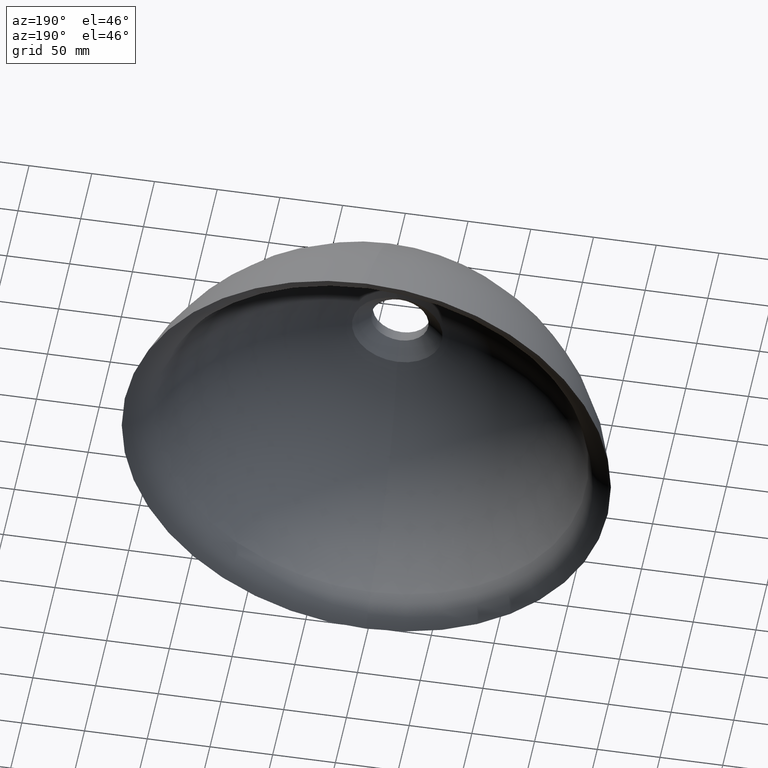
[diagram: clean part render]
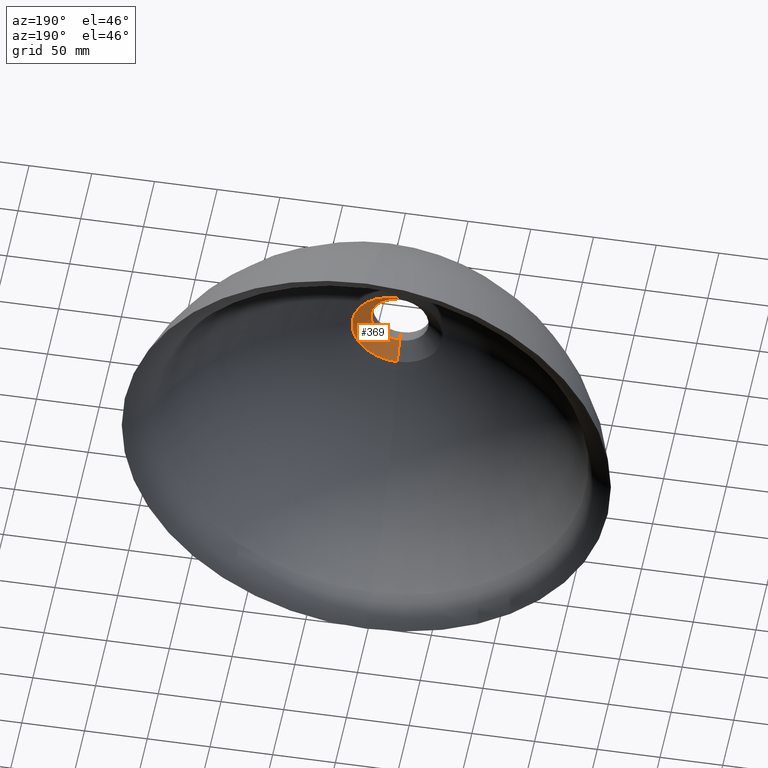
[diagram: same view with one face highlighted and labeled with its STEP entity id]
A machine part, auxiliary view. The second image highlights one B-rep face of the part: STEP entity #369.
In plain terms, the highlighted conical surface has half-angle 50 deg.
Its self-contained STEP definition (entity closure, byte-faithful):
#3 = CARTESIAN_POINT ( 'NONE',  ( 0.0000000000000000000, 20.00000000000000000, 0.0000000000000000000 ) ) ;
#5 = DIRECTION ( 'NONE',  ( 0.0000000000000000000, 0.0000000000000000000, 1.000000000000000000 ) ) ;
#9 = DIRECTION ( 'NONE',  ( -0.0000000000000000000, -1.000000000000000000, -0.0000000000000000000 ) ) ;
#14 = CARTESIAN_POINT ( 'NONE',  ( 1.284747968416844600E-014, 20.00000000000000000, 36.10928951853636400 ) ) ;
#16 = VERTEX_POINT ( 'NONE', #233 ) ;
#31 = EDGE_LOOP ( 'NONE', ( #453, #185, #42, #218 ) ) ;
#39 = CIRCLE ( 'NONE', #336, 23.00000000000000000 ) ;
#42 = ORIENTED_EDGE ( 'NONE', *, *, #209, .T. ) ;
#67 = CARTESIAN_POINT ( 'NONE',  ( 2.816687638038912400E-015, 9.000000000000001800, -23.00000000000000000 ) ) ;
#98 = VECTOR ( 'NONE', #298, 1000.000000000000000 ) ;
#138 = LINE ( 'NONE', #159, #199 ) ;
#159 = CARTESIAN_POINT ( 'NONE',  ( 0.0000000000000000000, 9.000000000000001800, 23.00000000000000000 ) ) ;
#174 = LINE ( 'NONE', #67, #98 ) ;
#177 = VERTEX_POINT ( 'NONE', #14 ) ;
#184 = CARTESIAN_POINT ( 'NONE',  ( 0.0000000000000000000, 9.000000000000001800, 0.0000000000000000000 ) ) ;
#185 = ORIENTED_EDGE ( 'NONE', *, *, #403, .T. ) ;
#194 = DIRECTION ( 'NONE',  ( 0.0000000000000000000, 1.000000000000000000, 0.0000000000000000000 ) ) ;
#199 = VECTOR ( 'NONE', #331, 1000.000000000000000 ) ;
#209 = EDGE_CURVE ( 'NONE', #394, #177, #138, .T. ) ;
#211 = CARTESIAN_POINT ( 'NONE',  ( 0.0000000000000000000, 9.000000000000001800, 0.0000000000000000000 ) ) ;
#218 = ORIENTED_EDGE ( 'NONE', *, *, #354, .F. ) ;
#223 = VERTEX_POINT ( 'NONE', #337 ) ;
#233 = CARTESIAN_POINT ( 'NONE',  ( 0.0000000000000000000, 20.00000000000000000, -36.10928951853636400 ) ) ;
#251 = AXIS2_PLACEMENT_3D ( 'NONE', #3, #9, #451 ) ;
#277 = CIRCLE ( 'NONE', #251, 36.10928951853636400 ) ;
#284 = CARTESIAN_POINT ( 'NONE',  ( 0.0000000000000000000, 9.000000000000001800, 23.00000000000000000 ) ) ;
#298 = DIRECTION ( 'NONE',  ( 9.381338752702746800E-017, 0.6427876096865378100, -0.7660444431189793500 ) ) ;
#322 = CONICAL_SURFACE ( 'NONE', #416, 23.00000000000000000, 0.8726646259971667700 ) ;
#331 = DIRECTION ( 'NONE',  ( 0.0000000000000000000, 0.6427876096865378100, 0.7660444431189793500 ) ) ;
#336 = AXIS2_PLACEMENT_3D ( 'NONE', #211, #421, #454 ) ;
#337 = CARTESIAN_POINT ( 'NONE',  ( 3.619400110437487600E-015, 9.000000000000001800, -23.00000000000000000 ) ) ;
#338 = FACE_OUTER_BOUND ( 'NONE', #31, .T. ) ;
#354 = EDGE_CURVE ( 'NONE', #16, #177, #277, .T. ) ;
#369 = ADVANCED_FACE ( 'NONE', ( #338 ), #322, .F. ) ;
#394 = VERTEX_POINT ( 'NONE', #284 ) ;
#403 = EDGE_CURVE ( 'NONE', #223, #394, #39, .T. ) ;
#416 = AXIS2_PLACEMENT_3D ( 'NONE', #184, #194, #5 ) ;
#421 = DIRECTION ( 'NONE',  ( -0.0000000000000000000, -1.000000000000000000, -0.0000000000000000000 ) ) ;
#424 = EDGE_CURVE ( 'NONE', #223, #16, #174, .T. ) ;
#451 = DIRECTION ( 'NONE',  ( 0.0000000000000000000, 0.0000000000000000000, -1.000000000000000000 ) ) ;
#453 = ORIENTED_EDGE ( 'NONE', *, *, #424, .F. ) ;
#454 = DIRECTION ( 'NONE',  ( 0.0000000000000000000, 0.0000000000000000000, -1.000000000000000000 ) ) ;